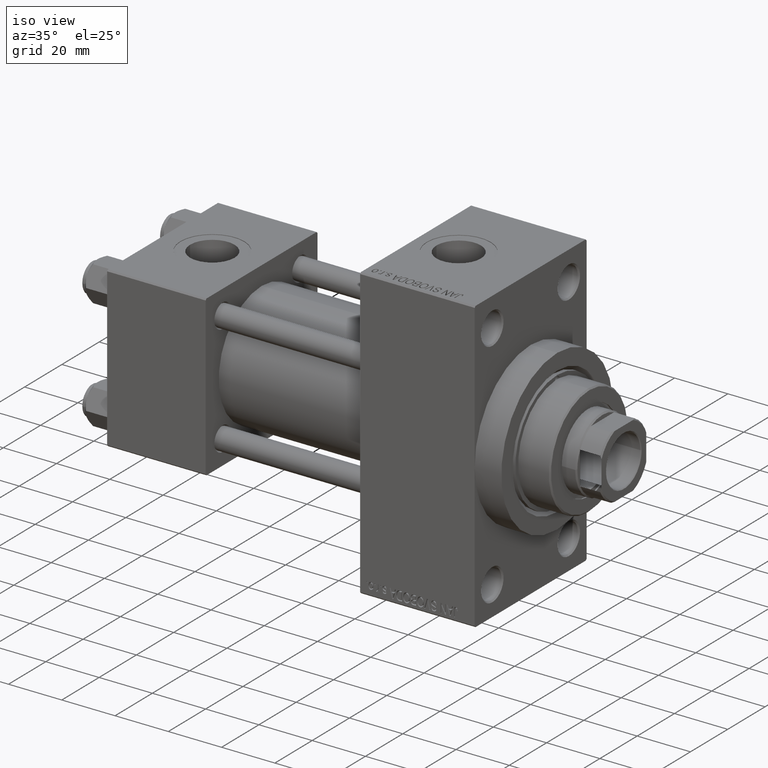
[diagram: clean part render]
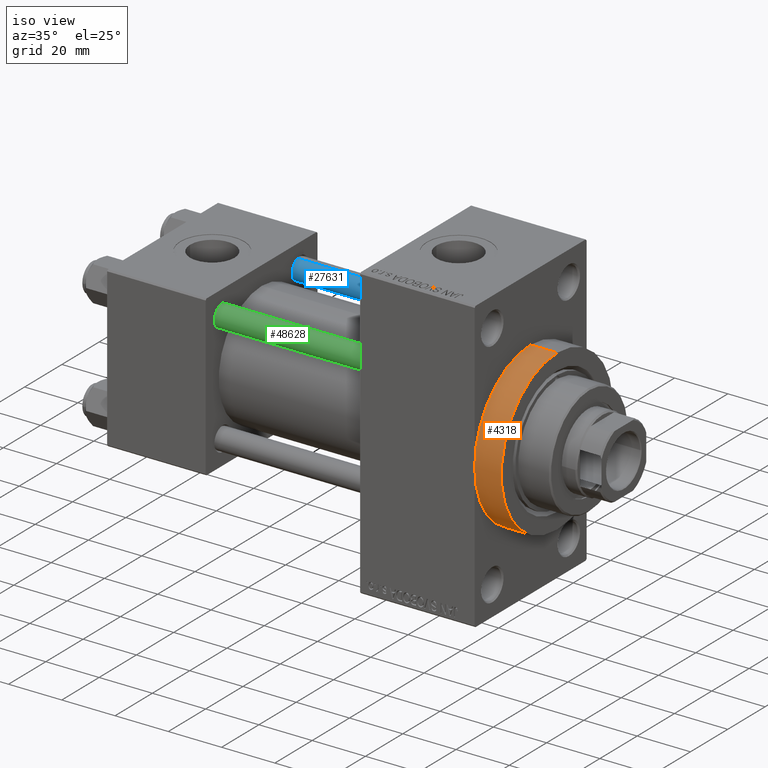
[diagram: same view with three faces highlighted in distinct colors, each labeled with its STEP entity id]
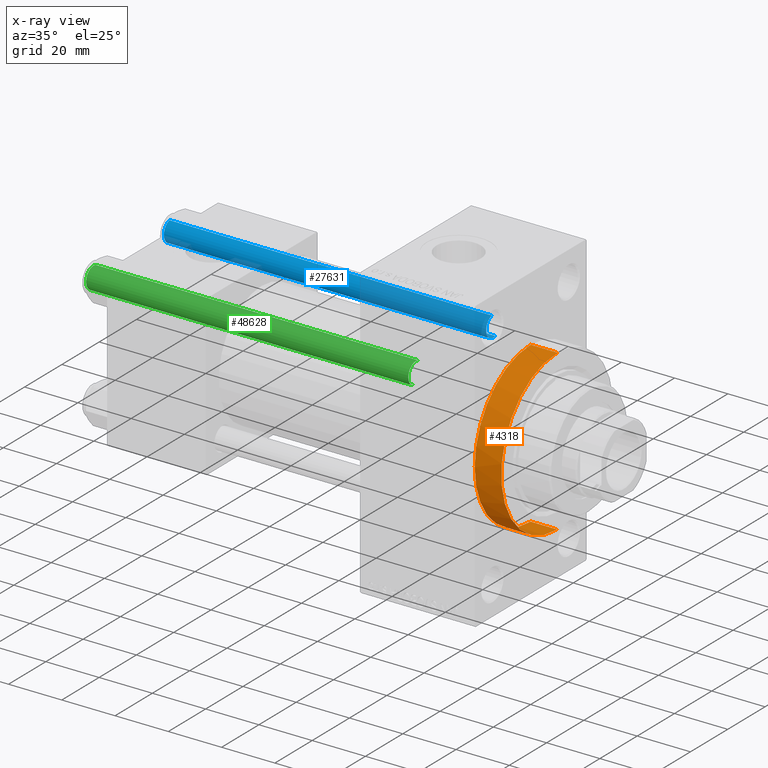
[diagram: x-ray of the same camera — body ghosted, the three highlighted faces saturated]
A machine part, iso view with three faces highlighted in distinct colors.
The next image is the same camera in x-ray (body ghosted, the three faces saturated) — at least one of them is partly hidden behind the body in this view.
Their STEP definitions:

[orange] entity #4318 — the highlighted cylindrical surface (partial cylindrical patch) has radius 30 mm, axis along (-1, -0, -0).
#396 = DIRECTION ( 'NONE',  ( 0.000000000000000000, 0.000000000000000000, -1.000000000000000000 ) ) ;
#1352 = CARTESIAN_POINT ( 'NONE',  ( 138.0000000000000000, -30.00000000000000000, 0.000000000000000000 ) ) ;
#1384 = CIRCLE ( 'NONE', #41160, 30.00000000000000000 ) ;
#1736 = EDGE_CURVE ( 'NONE', #47874, #4723, #3063, .T. ) ;
#3063 = CIRCLE ( 'NONE', #3858, 30.00000000000000000 ) ;
#3518 = DIRECTION ( 'NONE',  ( 0.000000000000000000, 0.000000000000000000, -1.000000000000000000 ) ) ;
#3858 = AXIS2_PLACEMENT_3D ( 'NONE', #47403, #20290, #9549 ) ;
#3885 = DIRECTION ( 'NONE',  ( 1.000000000000000000, 0.000000000000000000, 0.000000000000000000 ) ) ;
#4318 = ADVANCED_FACE ( 'NONE', ( #37809 ), #14909, .T. ) ;
#4723 = VERTEX_POINT ( 'NONE', #1352 ) ;
#6020 = CARTESIAN_POINT ( 'NONE',  ( 148.0000000000000284, 0.000000000000000000, 30.00000000000000000 ) ) ;
#6550 = ORIENTED_EDGE ( 'NONE', *, *, #16520, .F. ) ;
#9549 = DIRECTION ( 'NONE',  ( 0.000000000000000000, 0.000000000000000000, -1.000000000000000000 ) ) ;
#9752 = LINE ( 'NONE', #6020, #19180 ) ;
#10455 = EDGE_CURVE ( 'NONE', #21477, #47874, #9752, .T. ) ;
#10663 = CIRCLE ( 'NONE', #16252, 30.00000000000000000 ) ;
#11163 = DIRECTION ( 'NONE',  ( -1.000000000000000000, -0.000000000000000000, -0.000000000000000000 ) ) ;
#14909 = CYLINDRICAL_SURFACE ( 'NONE', #39733, 30.00000000000000000 ) ;
#15235 = CARTESIAN_POINT ( 'NONE',  ( 148.0000000000000284, 0.000000000000000000, 30.00000000000000000 ) ) ;
#16252 = AXIS2_PLACEMENT_3D ( 'NONE', #38484, #3885, #396 ) ;
#16520 = EDGE_CURVE ( 'NONE', #21477, #23640, #1384, .T. ) ;
#16615 = DIRECTION ( 'NONE',  ( -1.000000000000000000, -0.000000000000000000, -0.000000000000000000 ) ) ;
#17830 = EDGE_CURVE ( 'NONE', #23640, #47493, #32269, .T. ) ;
#19180 = VECTOR ( 'NONE', #21211, 1000.000000000000000 ) ;
#20290 = DIRECTION ( 'NONE',  ( 1.000000000000000000, 0.000000000000000000, 0.000000000000000000 ) ) ;
#21211 = DIRECTION ( 'NONE',  ( -1.000000000000000000, -0.000000000000000000, -0.000000000000000000 ) ) ;
#21477 = VERTEX_POINT ( 'NONE', #15235 ) ;
#23206 = ORIENTED_EDGE ( 'NONE', *, *, #10455, .T. ) ;
#23640 = VERTEX_POINT ( 'NONE', #39921 ) ;
#24897 = CARTESIAN_POINT ( 'NONE',  ( 138.0000000000000000, 0.000000000000000000, 30.00000000000000000 ) ) ;
#25440 = DIRECTION ( 'NONE',  ( 1.000000000000000000, 0.000000000000000000, 0.000000000000000000 ) ) ;
#26364 = DIRECTION ( 'NONE',  ( 0.000000000000000000, 0.000000000000000000, 1.000000000000000000 ) ) ;
#26624 = EDGE_LOOP ( 'NONE', ( #39099, #6550, #23206, #42355, #37784 ) ) ;
#30947 = CARTESIAN_POINT ( 'NONE',  ( 138.0000000000000000, 3.673940397442059178E-15, -30.00000000000000000 ) ) ;
#32269 = LINE ( 'NONE', #36032, #33236 ) ;
#33236 = VECTOR ( 'NONE', #16615, 1000.000000000000000 ) ;
#36032 = CARTESIAN_POINT ( 'NONE',  ( 148.0000000000000284, 3.673940397442059178E-15, -30.00000000000000000 ) ) ;
#37784 = ORIENTED_EDGE ( 'NONE', *, *, #38935, .T. ) ;
#37809 = FACE_OUTER_BOUND ( 'NONE', #26624, .T. ) ;
#38484 = CARTESIAN_POINT ( 'NONE',  ( 138.0000000000000000, 0.000000000000000000, 0.000000000000000000 ) ) ;
#38935 = EDGE_CURVE ( 'NONE', #4723, #47493, #10663, .T. ) ;
#39099 = ORIENTED_EDGE ( 'NONE', *, *, #17830, .F. ) ;
#39733 = AXIS2_PLACEMENT_3D ( 'NONE', #45267, #11163, #26364 ) ;
#39921 = CARTESIAN_POINT ( 'NONE',  ( 148.0000000000000284, 3.673940397442059178E-15, -30.00000000000000000 ) ) ;
#41160 = AXIS2_PLACEMENT_3D ( 'NONE', #48338, #25440, #3518 ) ;
#42355 = ORIENTED_EDGE ( 'NONE', *, *, #1736, .T. ) ;
#45267 = CARTESIAN_POINT ( 'NONE',  ( 148.0000000000000284, 0.000000000000000000, 0.000000000000000000 ) ) ;
#47403 = CARTESIAN_POINT ( 'NONE',  ( 138.0000000000000000, 0.000000000000000000, 0.000000000000000000 ) ) ;
#47493 = VERTEX_POINT ( 'NONE', #30947 ) ;
#47874 = VERTEX_POINT ( 'NONE', #24897 ) ;
#48338 = CARTESIAN_POINT ( 'NONE',  ( 148.0000000000000284, 0.000000000000000000, 0.000000000000000000 ) ) ;

[blue] entity #27631 — the highlighted cylindrical surface (edge-blend (fillet) strip) has radius 4 mm, axis along (-1, -0, 0).
#2192 = LINE ( 'NONE', #32819, #13468 ) ;
#2243 = VECTOR ( 'NONE', #33272, 1000.000000000000000 ) ;
#3097 = ORIENTED_EDGE ( 'NONE', *, *, #24010, .F. ) ;
#5298 = FACE_OUTER_BOUND ( 'NONE', #7706, .T. ) ;
#5445 = DIRECTION ( 'NONE',  ( -0.000000000000000000, -0.000000000000000000, -1.000000000000000000 ) ) ;
#5597 = CARTESIAN_POINT ( 'NONE',  ( 4.000000000000000000, 4.898587196589411843E-16, 0.5000000000000559552 ) ) ;
#7706 = EDGE_LOOP ( 'NONE', ( #3097, #9203, #47474, #44099 ) ) ;
#9203 = ORIENTED_EDGE ( 'NONE', *, *, #45786, .T. ) ;
#11251 = CIRCLE ( 'NONE', #39841, 4.000000000000000000 ) ;
#12244 = CARTESIAN_POINT ( 'NONE',  ( 4.000000000000000000, 4.898587196589411843E-16, 121.5000000000000426 ) ) ;
#12783 = CARTESIAN_POINT ( 'NONE',  ( 0.000000000000000000, 0.000000000000000000, 122.0000000000000000 ) ) ;
#13468 = VECTOR ( 'NONE', #5445, 1000.000000000000000 ) ;
#15028 = AXIS2_PLACEMENT_3D ( 'NONE', #40272, #17891, #29581 ) ;
#17891 = DIRECTION ( 'NONE',  ( 0.000000000000000000, 0.000000000000000000, -1.000000000000000000 ) ) ;
#17932 = EDGE_CURVE ( 'NONE', #40191, #32462, #47727, .T. ) ;
#19170 = CARTESIAN_POINT ( 'NONE',  ( 0.000000000000000000, 0.000000000000000000, 0.5000000000000559552 ) ) ;
#21432 = VERTEX_POINT ( 'NONE', #5597 ) ;
#23561 = CARTESIAN_POINT ( 'NONE',  ( -4.000000000000000000, 0.000000000000000000, 121.5000000000000426 ) ) ;
#24010 = EDGE_CURVE ( 'NONE', #44592, #21432, #2192, .T. ) ;
#27631 = ADVANCED_FACE ( 'NONE', ( #5298 ), #28440, .T. ) ;
#27716 = DIRECTION ( 'NONE',  ( -1.000000000000000000, 0.000000000000000000, 0.000000000000000000 ) ) ;
#28089 = EDGE_CURVE ( 'NONE', #32462, #21432, #11251, .T. ) ;
#28440 = CYLINDRICAL_SURFACE ( 'NONE', #40634, 4.000000000000000000 ) ;
#29581 = DIRECTION ( 'NONE',  ( 1.000000000000000000, 0.000000000000000000, 0.000000000000000000 ) ) ;
#30090 = CARTESIAN_POINT ( 'NONE',  ( -4.000000000000000000, 0.000000000000000000, 0.5000000000000559552 ) ) ;
#30931 = CIRCLE ( 'NONE', #15028, 4.000000000000000000 ) ;
#32462 = VERTEX_POINT ( 'NONE', #30090 ) ;
#32819 = CARTESIAN_POINT ( 'NONE',  ( 4.000000000000000000, 4.898587196589411843E-16, 122.0000000000000000 ) ) ;
#33272 = DIRECTION ( 'NONE',  ( -0.000000000000000000, -0.000000000000000000, -1.000000000000000000 ) ) ;
#38079 = DIRECTION ( 'NONE',  ( 1.000000000000000000, 0.000000000000000000, 0.000000000000000000 ) ) ;
#39841 = AXIS2_PLACEMENT_3D ( 'NONE', #19170, #45303, #38079 ) ;
#40191 = VERTEX_POINT ( 'NONE', #23561 ) ;
#40272 = CARTESIAN_POINT ( 'NONE',  ( 0.000000000000000000, 0.000000000000000000, 121.5000000000000426 ) ) ;
#40634 = AXIS2_PLACEMENT_3D ( 'NONE', #12783, #46404, #27716 ) ;
#44099 = ORIENTED_EDGE ( 'NONE', *, *, #28089, .T. ) ;
#44226 = CARTESIAN_POINT ( 'NONE',  ( -4.000000000000000000, 0.000000000000000000, 122.0000000000000000 ) ) ;
#44592 = VERTEX_POINT ( 'NONE', #12244 ) ;
#45303 = DIRECTION ( 'NONE',  ( -0.000000000000000000, -0.000000000000000000, 1.000000000000000000 ) ) ;
#45786 = EDGE_CURVE ( 'NONE', #44592, #40191, #30931, .T. ) ;
#46404 = DIRECTION ( 'NONE',  ( -0.000000000000000000, -0.000000000000000000, -1.000000000000000000 ) ) ;
#47474 = ORIENTED_EDGE ( 'NONE', *, *, #17932, .T. ) ;
#47727 = LINE ( 'NONE', #44226, #2243 ) ;

[green] entity #48628 — the highlighted cylindrical surface (edge-blend (fillet) strip) has radius 4 mm, axis along (1, 0, 0).
#298 = FACE_OUTER_BOUND ( 'NONE', #24266, .T. ) ;
#1944 = AXIS2_PLACEMENT_3D ( 'NONE', #34531, #3914, #16105 ) ;
#2192 = LINE ( 'NONE', #32819, #13468 ) ;
#2243 = VECTOR ( 'NONE', #33272, 1000.000000000000000 ) ;
#3914 = DIRECTION ( 'NONE',  ( 0.000000000000000000, 0.000000000000000000, -1.000000000000000000 ) ) ;
#4275 = CYLINDRICAL_SURFACE ( 'NONE', #42118, 4.000000000000000000 ) ;
#5445 = DIRECTION ( 'NONE',  ( -0.000000000000000000, -0.000000000000000000, -1.000000000000000000 ) ) ;
#5597 = CARTESIAN_POINT ( 'NONE',  ( 4.000000000000000000, 4.898587196589411843E-16, 0.5000000000000559552 ) ) ;
#8325 = CIRCLE ( 'NONE', #1944, 4.000000000000000000 ) ;
#9451 = DIRECTION ( 'NONE',  ( 1.000000000000000000, 0.000000000000000000, 0.000000000000000000 ) ) ;
#11271 = ORIENTED_EDGE ( 'NONE', *, *, #36927, .T. ) ;
#12244 = CARTESIAN_POINT ( 'NONE',  ( 4.000000000000000000, 4.898587196589411843E-16, 121.5000000000000426 ) ) ;
#13468 = VECTOR ( 'NONE', #5445, 1000.000000000000000 ) ;
#14351 = CIRCLE ( 'NONE', #23101, 4.000000000000000000 ) ;
#15497 = DIRECTION ( 'NONE',  ( -0.000000000000000000, -0.000000000000000000, -1.000000000000000000 ) ) ;
#16105 = DIRECTION ( 'NONE',  ( 1.000000000000000000, 0.000000000000000000, 0.000000000000000000 ) ) ;
#17932 = EDGE_CURVE ( 'NONE', #40191, #32462, #47727, .T. ) ;
#21432 = VERTEX_POINT ( 'NONE', #5597 ) ;
#21720 = ORIENTED_EDGE ( 'NONE', *, *, #17932, .F. ) ;
#22838 = ORIENTED_EDGE ( 'NONE', *, *, #24010, .T. ) ;
#23101 = AXIS2_PLACEMENT_3D ( 'NONE', #36852, #43558, #9451 ) ;
#23561 = CARTESIAN_POINT ( 'NONE',  ( -4.000000000000000000, 0.000000000000000000, 121.5000000000000426 ) ) ;
#24010 = EDGE_CURVE ( 'NONE', #44592, #21432, #2192, .T. ) ;
#24266 = EDGE_LOOP ( 'NONE', ( #11271, #22838, #39978, #21720 ) ) ;
#30090 = CARTESIAN_POINT ( 'NONE',  ( -4.000000000000000000, 0.000000000000000000, 0.5000000000000559552 ) ) ;
#30660 = DIRECTION ( 'NONE',  ( -1.000000000000000000, 0.000000000000000000, 0.000000000000000000 ) ) ;
#32462 = VERTEX_POINT ( 'NONE', #30090 ) ;
#32819 = CARTESIAN_POINT ( 'NONE',  ( 4.000000000000000000, 4.898587196589411843E-16, 122.0000000000000000 ) ) ;
#33272 = DIRECTION ( 'NONE',  ( -0.000000000000000000, -0.000000000000000000, -1.000000000000000000 ) ) ;
#34531 = CARTESIAN_POINT ( 'NONE',  ( 0.000000000000000000, 0.000000000000000000, 121.5000000000000426 ) ) ;
#36852 = CARTESIAN_POINT ( 'NONE',  ( 0.000000000000000000, 0.000000000000000000, 0.5000000000000559552 ) ) ;
#36927 = EDGE_CURVE ( 'NONE', #40191, #44592, #8325, .T. ) ;
#39978 = ORIENTED_EDGE ( 'NONE', *, *, #48925, .T. ) ;
#40191 = VERTEX_POINT ( 'NONE', #23561 ) ;
#42118 = AXIS2_PLACEMENT_3D ( 'NONE', #45839, #15497, #30660 ) ;
#43558 = DIRECTION ( 'NONE',  ( -0.000000000000000000, -0.000000000000000000, 1.000000000000000000 ) ) ;
#44226 = CARTESIAN_POINT ( 'NONE',  ( -4.000000000000000000, 0.000000000000000000, 122.0000000000000000 ) ) ;
#44592 = VERTEX_POINT ( 'NONE', #12244 ) ;
#45839 = CARTESIAN_POINT ( 'NONE',  ( 0.000000000000000000, 0.000000000000000000, 122.0000000000000000 ) ) ;
#47727 = LINE ( 'NONE', #44226, #2243 ) ;
#48628 = ADVANCED_FACE ( 'NONE', ( #298 ), #4275, .T. ) ;
#48925 = EDGE_CURVE ( 'NONE', #21432, #32462, #14351, .T. ) ;